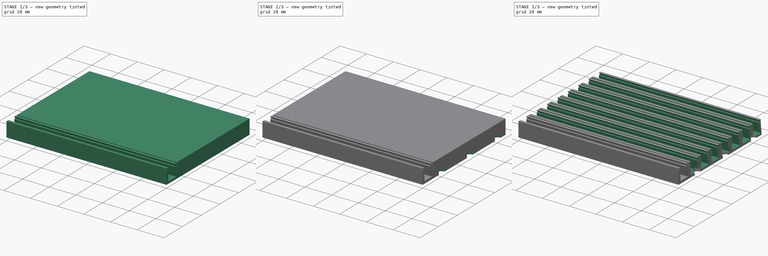
[diagram: build sequence overview — one tinted view per stage of 3, left to right]
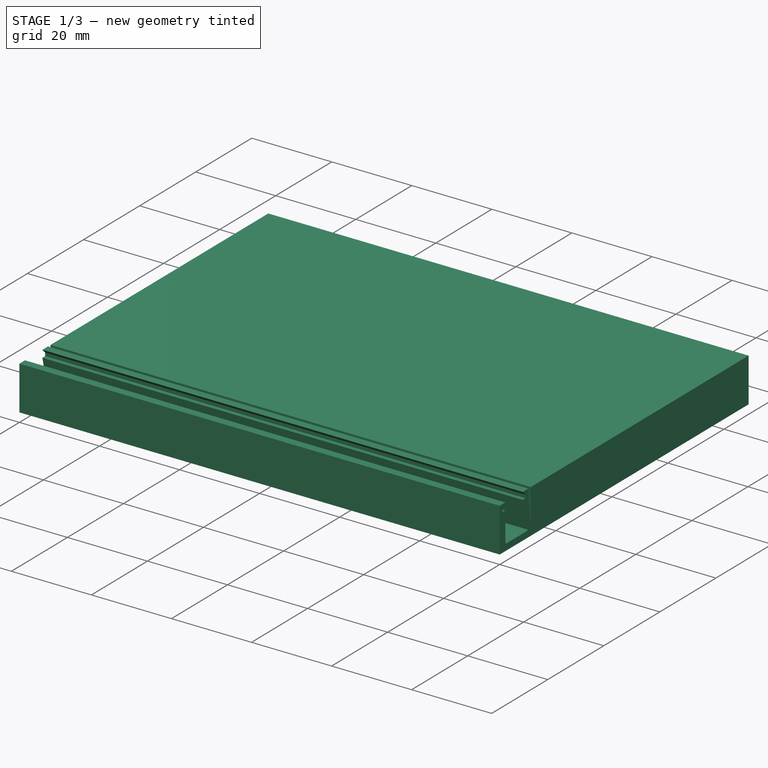
[diagram: stage 1 of 3 — iso view after this stage's code; geometry added in this stage tinted green]
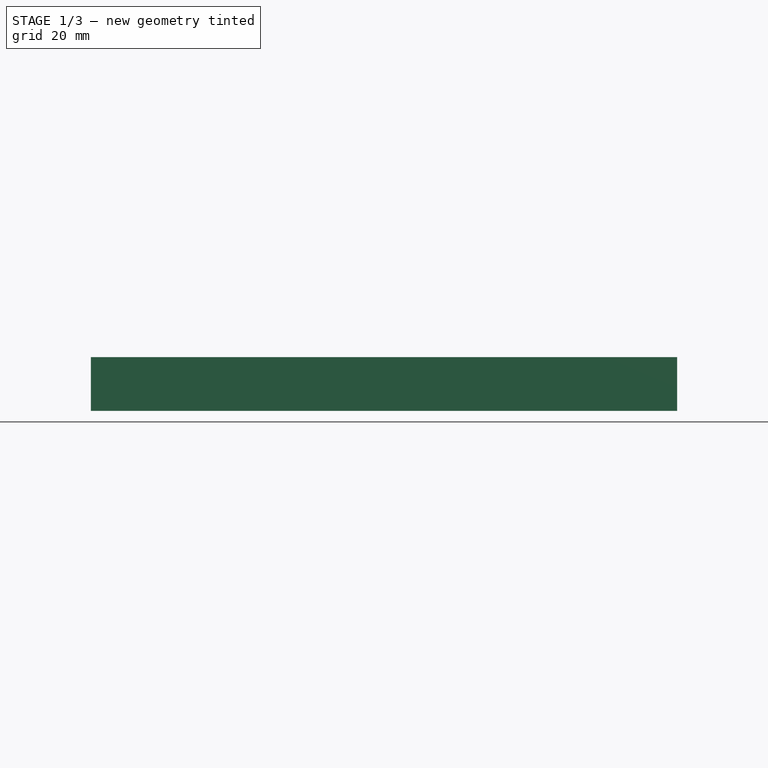
[diagram: stage 1 of 3 — front view after this stage's code; geometry added in this stage tinted green]
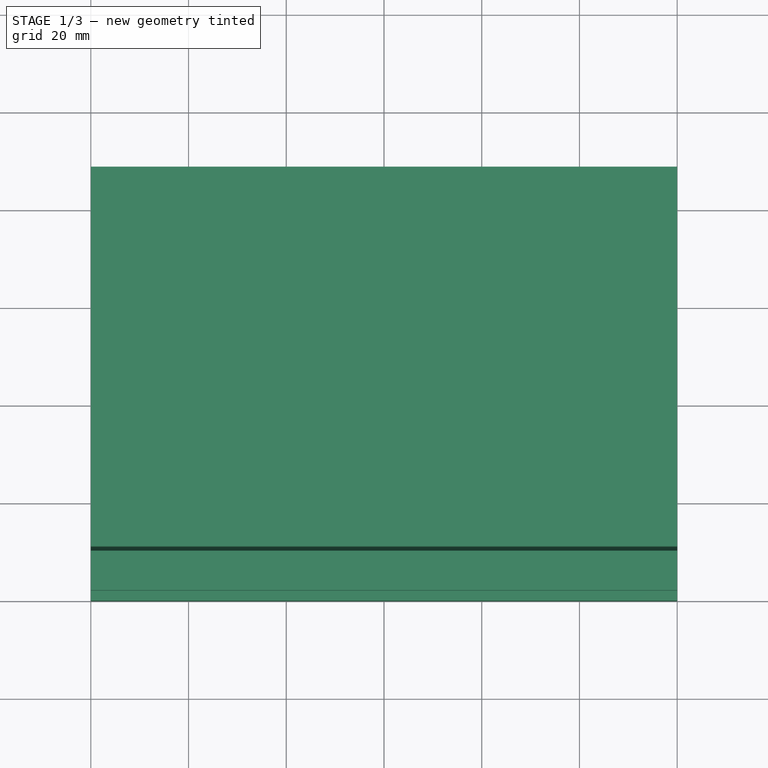
[diagram: stage 1 of 3 — top view after this stage's code; geometry added in this stage tinted green]
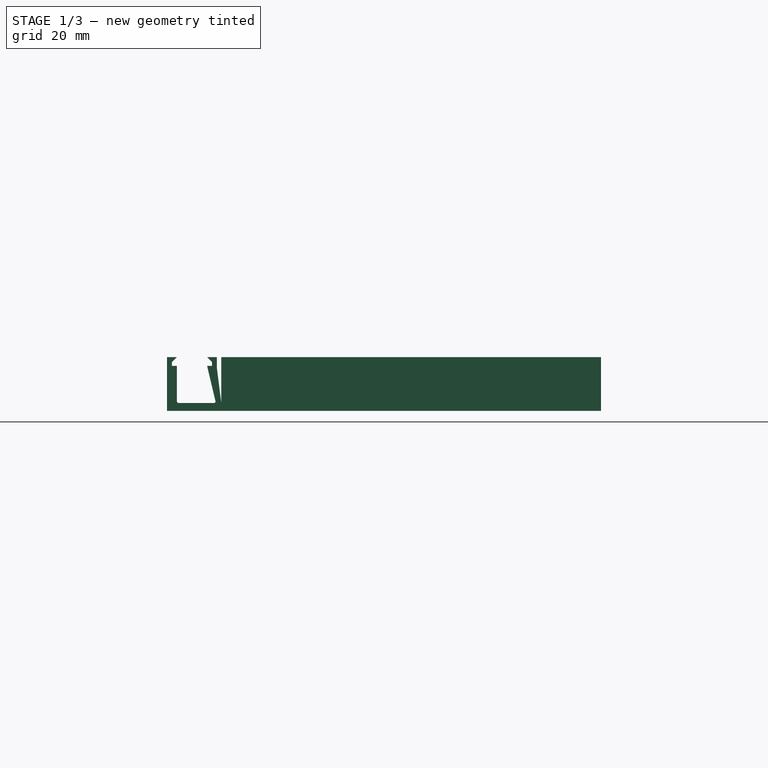
[diagram: stage 1 of 3 — right view after this stage's code; geometry added in this stage tinted green]
FCSTD DOCUMENT  (FreeCAD 0.19R24276 (Git))
Label: 8mm-strip-feeder
License: All rights reserved
LicenseURL: http://en.wikipedia.org/wiki/All_rights_reserved
objects: Sketcher::SketchObject×5, PartDesign::Pocket×2, PartDesign::Hole×2, PartDesign::Pad×1, Spreadsheet::Sheet×1, PartDesign::LinearPattern×1, PartDesign::Plane×1, PartDesign::Body×1
note: 18 computed .brp shape members not serialized (recipe doc carries the construction recipe); baked Part::Feature solids carry a one-line shape summary decoded from their .brp

FEATURE [Sketcher::SketchObject] Sketch  label="Base"
  FullyConstrained = true
  MapMode = 2
  Support = -> [XY_Plane]
  expr: .Constraints.Length = <<StripFeederParams>>.Length
  expr: Constraints[10] = <<StripFeederParams>>.WidthOfAllHolders
  sketch-geometry (4):
    g0: LineSegment StartX=0 StartY=0 StartZ=0 EndX=120 EndY=0 EndZ=0
    g1: LineSegment StartX=120 StartY=0 StartZ=0 EndX=120 EndY=88.8 EndZ=0
    g2: LineSegment StartX=120 StartY=88.8 StartZ=0 EndX=0 EndY=88.8 EndZ=0
    g3: LineSegment StartX=0 StartY=88.8 StartZ=0 EndX=0 EndY=0 EndZ=0
  constraints (11):
    c: Coincident(g0,g1)
    c: Coincident(g1,g2)
    c: Coincident(g2,g3)
    c: Coincident(g3,g0)
    c: Horizontal(g0)
    c: Horizontal(g2)
    c: Vertical(g1)
    c: Vertical(g3)
    c: Coincident(g0,g-1)
    c: DistanceX(g2,g2) = 120  'Length'
    c: DistanceY(g1,g1) = 88.8
FEATURE [PartDesign::Pad] Pad
  Direction = (0,0,1)
  Length = 11
  Length2 = 100
  Profile = -> Sketch
  Type = 0
FEATURE [Sketcher::SketchObject] Sketch001  label="TapeSlots"
  FullyConstrained = true
  MapMode = 5
  Placement = pos=(0,0,0) rot=(0.57735,0.57735,0.57735;2.0944rad)
  Support = -> [YZ_Plane]
  expr: Constraints[49] = <<StripFeederParams>>.TapeWidth + <<StripFeederParams>>.HolderW
  expr: Constraints[47] = <<StripFeederParams>>.BuildHeight
  expr: Constraints[5] = Spreadsheet.TapeThickness
  expr: Constraints[6] = <<StripFeederParams>>.TapeWidth + 0.1
  sketch-geometry (23):
    g0: LineSegment StartX=9.2 StartY=9.2 StartZ=0 EndX=9.2 EndY=10 EndZ=0
    g1: LineSegment StartX=9.2 StartY=10 StartZ=0 EndX=8.2 EndY=11 EndZ=0
    g2: LineSegment StartX=1 StartY=9.2 StartZ=0 EndX=1 EndY=10 EndZ=0
    g3: LineSegment StartX=1 StartY=10 StartZ=0 EndX=2 EndY=11 EndZ=0
    g4: LineSegment StartX=1 StartY=9.2 StartZ=0 EndX=2 EndY=9.2 EndZ=0
    g5: LineSegment StartX=2 StartY=9.2 StartZ=0 EndX=2 EndY=1.9 EndZ=0
    g6: LineSegment StartX=9.2 StartY=9.2 StartZ=0 EndX=8.2 EndY=9.2 EndZ=0
    g7: LineSegment StartX=8.2 StartY=9.2 StartZ=0 EndX=10 EndY=1.6 EndZ=0
    g8: LineSegment StartX=10 StartY=1.6 StartZ=0 EndX=2.3 EndY=1.6 EndZ=0
    g9: LineSegment StartX=11 StartY=1.6 StartZ=0 EndX=9.55526 EndY=7.7 EndZ=0
    g10: LineSegment StartX=9.55526 StartY=7.7 StartZ=0 EndX=10.2 EndY=8.74492 EndZ=0
    g11: LineSegment StartX=10.2 StartY=8.74492 StartZ=0 EndX=10.2 EndY=16 EndZ=0
    g12: LineSegment StartX=10.2 StartY=16 StartZ=0 EndX=11.1 EndY=16 EndZ=0
    g13: LineSegment StartX=11.1 StartY=16 StartZ=0 EndX=11.1 EndY=1.6 EndZ=0
    g14: LineSegment StartX=11 StartY=1.6 StartZ=0 EndX=11.1 EndY=1.6 EndZ=0
    g15: LineSegment StartX=2 StartY=11 StartZ=0 EndX=2 EndY=16 EndZ=0
    g16: LineSegment StartX=8.2 StartY=11 StartZ=0 EndX=8.2 EndY=16 EndZ=0
    g17: LineSegment StartX=2 StartY=16 StartZ=0 EndX=8.2 EndY=16 EndZ=0
    g18: LineSegment StartX=11.1 StartY=1.6 StartZ=0 EndX=10.2 EndY=8.74492 EndZ=0
    g19: LineSegment StartX=2 StartY=1.9 StartZ=0 EndX=2.3 EndY=1.6 EndZ=0
    g20: LineSegment StartX=9.7 StartY=1.6 StartZ=0 EndX=9.94255 EndY=1.84255 EndZ=0
    g21: LineSegment StartX=2.3 StartY=1.6 StartZ=0 EndX=9.7 EndY=1.6 EndZ=0
    g22: LineSegment StartX=9.94255 StartY=1.84255 StartZ=0 EndX=8.2 EndY=9.2 EndZ=0
  constraints (67):
    c: Vertical(g0)
    c: Coincident(g1,g0)
    c: Vertical(g2)
    c: Coincident(g3,g2)
    c: Equal(g2,g0)
    c: DistanceY(g0,g0) = 0.8
    c: DistanceX(g2,g0) = 8.2
    c: Angle(g2,g3) = 2.35619
    c: Coincident(g4,g2)
    c: Horizontal(g4)
    c: Coincident(g5,g4)
    c: Vertical(g5)
    c: Coincident(g6,g0)
    c: Coincident(g7,g6)
    c: Coincident(g8,g7)
    c: Horizontal(g8)
    c: Horizontal(g4,g6)
    c: Horizontal(g6,g0)
    c: DistanceX(g-1,g2) = 1
    c: Angle(g1,g0) = 2.35619
    c: DistanceX(g4,g4) = 1
    c: DistanceX(g0,g7) = 0.8
    c: Coincident(g10,g9)
    c: Coincident(g11,g10)
    c: Vertical(g11)
    c: Coincident(g12,g11)
    c: Horizontal(g12)
    c: Coincident(g13,g12)
    c: Vertical(g13)
    c: Parallel(g7,g9)
    c: DistanceY(g9,g0) = 1.5
    c: Coincident(g14,g9)
    c: Coincident(g14,g13)
    c: Horizontal(g14)
    c: Horizontal(g9,g7)
    c: DistanceX(g7,g9) = 1
    c: DistanceX(g0,g10) = 1
    c: Vertical(g4,g3)
    c: DistanceX(g1,g0) = 1
    c: Coincident(g15,g3)
    c: Vertical(g15)
    c: Coincident(g16,g1)
    c: Vertical(g16)
    c: Coincident(g17,g15)
    c: Coincident(g17,g16)
    c: Horizontal(g17)
    c: DistanceY(g15,g15) = 5
    c: DistanceY(g-1,g2) = 10
    c: Horizontal(g11,g16)
    c: DistanceX(g-1,g13) = 11.1
    c: Vertical(g6,g1)
    c: Angle(g9,g10) = 2.35619
    c: Coincident(g18,g13)
    c: Coincident(g18,g10)
    c: Angle(g8,g19) = 2.35619
    c: Coincident(g5,g19)
    c: Coincident(g8,g19)
    c: DistanceY(g-1,g8) = 1.6
    c: DistanceX(g5,g8) = 0.3
    c: PointOnObject(g20,g8)
    c: PointOnObject(g20,g7)
    c: Perpendicular(g19,g20)
    c: DistanceX(g20,g7) = 0.3
    c: Coincident(g21,g19)
    c: Coincident(g21,g20)
    c: Coincident(g22,g20)
    c: Coincident(g22,g6)
FEATURE [PartDesign::Pocket] Pocket  label="TapeSlotCutouts"
  BaseFeature = -> Pad
  Length = 120
  Length2 = 100
  Profile = -> Sketch001
  Reversed = true
  Type = 0
  expr: Length = <<StripFeederParams>>.Length
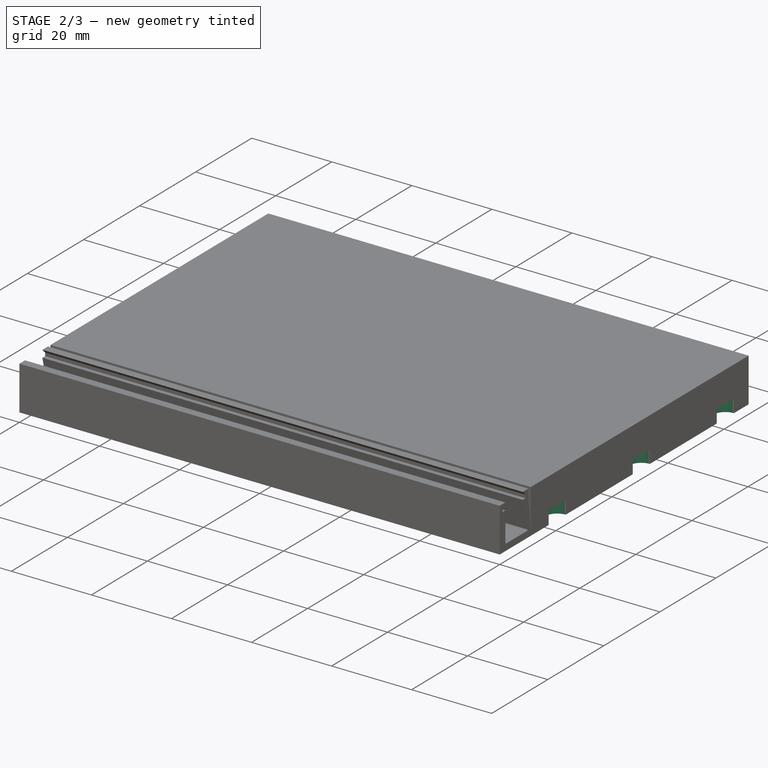
[diagram: stage 2 of 3 — iso view after this stage's code; geometry added in this stage tinted green]
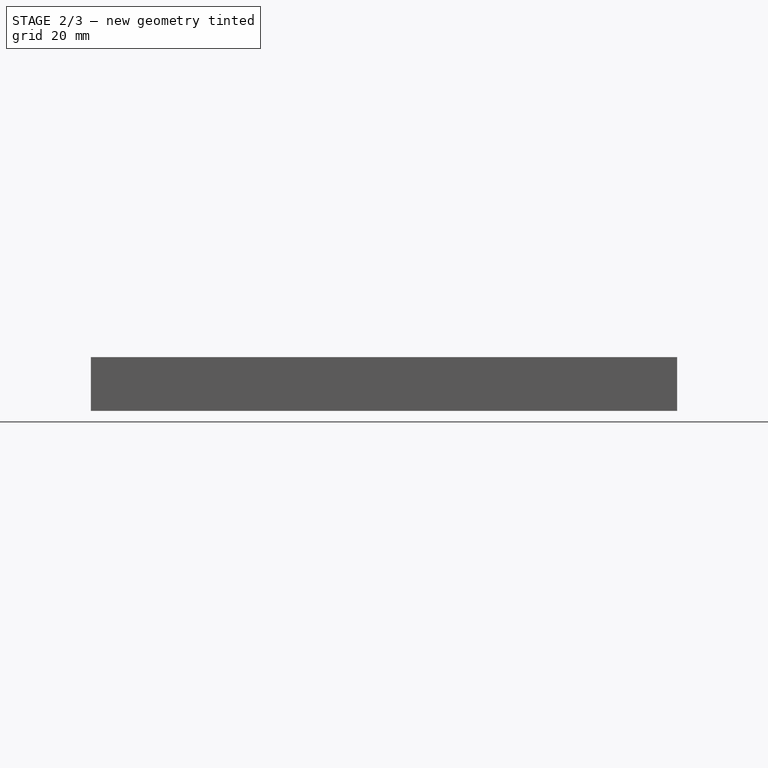
[diagram: stage 2 of 3 — front view after this stage's code; geometry added in this stage tinted green]
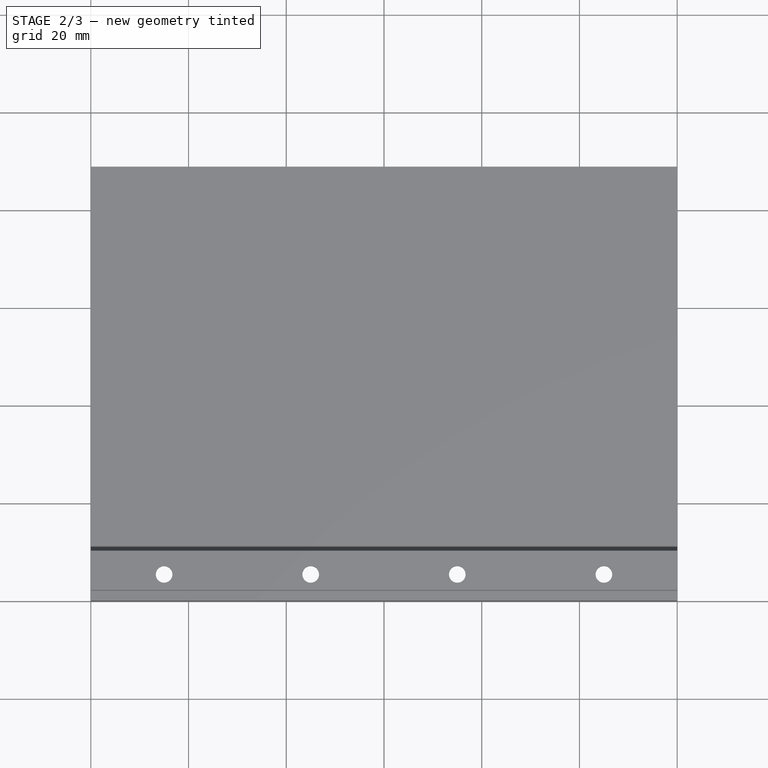
[diagram: stage 2 of 3 — top view after this stage's code; geometry added in this stage tinted green]
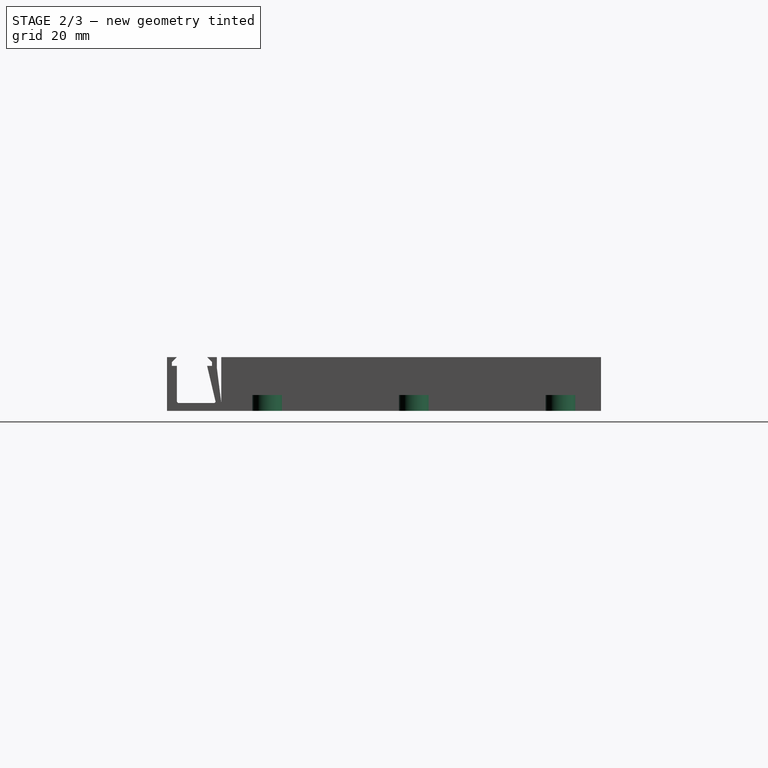
[diagram: stage 2 of 3 — right view after this stage's code; geometry added in this stage tinted green]
FEATURE [Sketcher::SketchObject] Sketch003  label="M3Nuts"
  AttachmentOffset = pos=(0,0,1.6) rot=(0,0,1;0rad)
  FullyConstrained = true
  MapMode = 5
  Placement = pos=(0,0,1.6) rot=(0,0,1;0rad)
  Support = -> [XY_Plane]
  expr: .AttachmentOffset.Base.z = <<StripFeederParams>>.BaseThickness
  expr: Constraints[55] = <<StripFeederParams>>.TabSpacingMultiple > 2 ? <<StripFeederParams>>.GridSpacing : <<StripFeederParams>>.Length
  expr: Constraints[56] = <<StripFeederParams>>.HoleOffsetY
  expr: Constraints[57] = <<StripFeederParams>>.HoleOffsetX
  expr: Constraints[66] = <<StripFeederParams>>.GridSpacing
  sketch-geometry (23):
    g0: LineSegment StartX=16.8333 StartY=2.32457 StartZ=0 EndX=18.6667 EndY=5.5 EndZ=0
    g1: LineSegment StartX=18.6667 StartY=5.5 StartZ=0 EndX=16.8333 EndY=8.67543 EndZ=0
    g2: LineSegment StartX=16.8333 StartY=8.67543 StartZ=0 EndX=13.1667 EndY=8.67543 EndZ=0
    g3: LineSegment StartX=13.1667 StartY=8.67543 StartZ=0 EndX=11.3333 EndY=5.5 EndZ=0
    g4: LineSegment StartX=11.3333 StartY=5.5 StartZ=0 EndX=13.1667 EndY=2.32457 EndZ=0
    g5: LineSegment StartX=13.1667 StartY=2.32457 StartZ=0 EndX=16.8333 EndY=2.32457 EndZ=0
    g6: Circle CenterX=15 CenterY=5.5 CenterZ=0 NormalX=0 NormalY=0 NormalZ=1 AngleXU=0 Radius=3.66667
    g7: LineSegment StartX=46.8333 StartY=2.32457 StartZ=0 EndX=48.6667 EndY=5.5 EndZ=0
    g8: LineSegment StartX=48.6667 StartY=5.5 StartZ=0 EndX=46.8333 EndY=8.67543 EndZ=0
    g9: LineSegment StartX=46.8333 StartY=8.67543 StartZ=0 EndX=43.1667 EndY=8.67543 EndZ=0
    g10: LineSegment StartX=43.1667 StartY=8.67543 StartZ=0 EndX=41.3333 EndY=5.5 EndZ=0
    g11: LineSegment StartX=41.3333 StartY=5.5 StartZ=0 EndX=43.1667 EndY=2.32457 EndZ=0
    g12: LineSegment StartX=43.1667 StartY=2.32457 StartZ=0 EndX=46.8333 EndY=2.32457 EndZ=0
    g13: Circle CenterX=45 CenterY=5.5 CenterZ=0 NormalX=0 NormalY=0 NormalZ=1 AngleXU=0 Radius=3.66667
    g14: LineSegment StartX=76.8333 StartY=2.32457 StartZ=0 EndX=78.6667 EndY=5.5 EndZ=0
    g15: LineSegment StartX=78.6667 StartY=5.5 StartZ=0 EndX=76.8333 EndY=8.67543 EndZ=0
    g16: LineSegment StartX=76.8333 StartY=8.67543 StartZ=0 EndX=73.1667 EndY=8.67543 EndZ=0
    g17: LineSegment StartX=73.1667 StartY=8.67543 StartZ=0 EndX=71.3333 EndY=5.5 EndZ=0
    g18: LineSegment StartX=71.3333 StartY=5.5 StartZ=0 EndX=73.1667 EndY=2.32457 EndZ=0
    g19: LineSegment StartX=73.1667 StartY=2.32457 StartZ=0 EndX=76.8333 EndY=2.32457 EndZ=0
    g20: Circle CenterX=75 CenterY=5.5 CenterZ=0 NormalX=0 NormalY=0 NormalZ=1 AngleXU=0 Radius=3.66667
    g21: LineSegment StartX=75 StartY=5.5 StartZ=0 EndX=45 EndY=5.5 EndZ=0
    g22: LineSegment StartX=45 StartY=5.5 StartZ=0 EndX=15 EndY=5.5 EndZ=0
  constraints (55):
    c: Coincident(g0,g1)
    c: Coincident(g1,g2)
    c: Coincident(g2,g3)
    c: Coincident(g3,g4)
    c: Coincident(g4,g5)
    c: Coincident(g5,g0)
    c: Equal(g0, g1-g5) x5
    c: PointOnObject(g0,g6)
    c: PointOnObject(g1,g6)
    c: PointOnObject(g2,g6)
    c: PointOnObject(g3,g6)
    c: PointOnObject(g4,g6)
    c: PointOnObject(g5,g6)
    c: Coincident(g7,g8)
    c: Coincident(g8,g9)
    c: Coincident(g9,g10)
    c: Coincident(g10,g11)
    c: Coincident(g11,g12)
    c: Coincident(g12,g7)
    c: Equal(g7, g8-g12) x5
    c: PointOnObject(g7,g13)
    c: PointOnObject(g8,g13)
    c: PointOnObject(g9,g13)
    c: PointOnObject(g10,g13)
    c: PointOnObject(g11,g13)
    c: PointOnObject(g12,g13)
    c: Coincident(g14,g15)
    c: Coincident(g15,g16)
    c: Coincident(g16,g17)
    c: Coincident(g17,g18)
    c: Coincident(g18,g19)
    c: Coincident(g19,g14)
    c: Equal(g14, g15-g19) x5
    c: PointOnObject(g14,g20)
    c: PointOnObject(g15,g20)
    c: PointOnObject(g16,g20)
    c: PointOnObject(g17,g20)
    c: PointOnObject(g18,g20)
    c: PointOnObject(g19,g20)
    c: Equal(g6,g13)
    c: Equal(g13,g20)
    c: Horizontal(g6,g13)
    c: Horizontal(g13,g20)
    c: DistanceX(g13,g20) = 30
    c: DistanceX(g-1,g6) = 15
    c: DistanceY(g-1,g6) = 5.5
    c: DistanceX(g2,g0) = 5.5
    c: Horizontal(g16)
    c: Horizontal(g9)
    c: Horizontal(g2)
    c: Coincident(g21,g20)
    c: Coincident(g21,g13)
    c: Coincident(g22,g13)
    c: Coincident(g22,g6)
    c: DistanceX(g6,g13) = 30
FEATURE [Sketcher::SketchObject] Sketch006  label="CounterBoreHoles"
  FullyConstrained = true
  MapMode = 5
  Support = -> [XY_Plane]
  expr: Constraints[20] = <<StripFeederParams>>.GridSpacing
  expr: Constraints[23] = <<StripFeederParams>>.GridSpacing
  expr: Constraints[34] = <<StripFeederParams>>.GridSpacing / 2
  expr: Constraints[198] = <<StripFeederParams>>.GridSpacing
  expr: Constraints[35] = <<StripFeederParams>>.GridSpacing / 2
  expr: Constraints[66] = <<StripFeederParams>>.HoleOffsetX
  expr: Constraints[67] = <<StripFeederParams>>.GridSpacing / 2
  expr: Constraints[72] = <<StripFeederParams>>.HoleOffsetY
  expr: Constraints[73] = <<StripFeederParams>>.GridSpacing / 2
  sketch-geometry (83):
    g0: Circle CenterX=15 CenterY=35.5 CenterZ=0 NormalX=0 NormalY=0 NormalZ=1 AngleXU=0 Radius=3
    g1: Circle CenterX=45 CenterY=35.5 CenterZ=0 NormalX=0 NormalY=0 NormalZ=1 AngleXU=0 Radius=3
    g2: Circle CenterX=75 CenterY=35.5 CenterZ=0 NormalX=0 NormalY=0 NormalZ=1 AngleXU=0 Radius=3
    g3: Circle CenterX=15 CenterY=65.5 CenterZ=0 NormalX=0 NormalY=0 NormalZ=1 AngleXU=0 Radius=3
    g4: Circle CenterX=45 CenterY=65.5 CenterZ=0 NormalX=0 NormalY=0 NormalZ=1 AngleXU=0 Radius=3
    g5: Circle CenterX=75 CenterY=65.5 CenterZ=0 NormalX=0 NormalY=0 NormalZ=1 AngleXU=0 Radius=3
    g6: LineSegment StartX=15 StartY=35.5 StartZ=0 EndX=15 EndY=65.5 EndZ=0
    g7: Circle CenterX=30 CenterY=20.5 CenterZ=0 NormalX=0 NormalY=0 NormalZ=1 AngleXU=0 Radius=3
    g8: Circle CenterX=60 CenterY=20.5 CenterZ=0 NormalX=0 NormalY=0 NormalZ=1 AngleXU=0 Radius=3
    g9: Circle CenterX=60 CenterY=50.5 CenterZ=0 NormalX=0 NormalY=0 NormalZ=1 AngleXU=0 Radius=3
    g10: Circle CenterX=30 CenterY=50.5 CenterZ=0 NormalX=0 NormalY=0 NormalZ=1 AngleXU=0 Radius=3
    g11: LineSegment StartX=30 StartY=20.5 StartZ=0 EndX=30 EndY=50.5 EndZ=0
    g12: Circle CenterX=90 CenterY=50.5 CenterZ=0 NormalX=0 NormalY=0 NormalZ=1 AngleXU=0 Radius=3
    g13: Circle CenterX=105 CenterY=65.5 CenterZ=0 NormalX=0 NormalY=0 NormalZ=1 AngleXU=0 Radius=3
    g14: Circle CenterX=90 CenterY=20.5 CenterZ=0 NormalX=0 NormalY=0 NormalZ=1 AngleXU=0 Radius=3
    g15: Circle CenterX=105 CenterY=35.5 CenterZ=0 NormalX=0 NormalY=0 NormalZ=1 AngleXU=0 Radius=3
    g16: Circle CenterX=30 CenterY=80.5 CenterZ=0 NormalX=0 NormalY=0 NormalZ=1 AngleXU=0 Radius=3
    g17: Circle CenterX=60 CenterY=80.5 CenterZ=0 NormalX=0 NormalY=0 NormalZ=1 AngleXU=0 Radius=3
    g18: Circle CenterX=90 CenterY=80.5 CenterZ=0 NormalX=0 NormalY=0 NormalZ=1 AngleXU=0 Radius=3
    g19: LineSegment StartX=30 StartY=80.5 StartZ=0 EndX=30 EndY=50.5 EndZ=0
    g20: LineSegment StartX=15 StartY=35.5 StartZ=0 EndX=45 EndY=35.5 EndZ=0
    g21: LineSegment StartX=105 StartY=35.5 StartZ=0 EndX=75 EndY=35.5 EndZ=0
    g22: LineSegment StartX=45 StartY=35.5 StartZ=0 EndX=75 EndY=35.5 EndZ=0
    g23: LineSegment StartX=30 StartY=20.5 StartZ=0 EndX=60 EndY=20.5 EndZ=0
    g24: LineSegment StartX=90 StartY=20.5 StartZ=0 EndX=60 EndY=20.5 EndZ=0
    g25: LineSegment StartX=0 StartY=5.5 StartZ=0 EndX=105 EndY=5.5 EndZ=0
    g26: LineSegment StartX=15 StartY=0 StartZ=0 EndX=15 EndY=80.5 EndZ=0
    g27: Circle CenterX=15 CenterY=95.5 CenterZ=0 NormalX=0 NormalY=0 NormalZ=1 AngleXU=0 Radius=3
    g28: Circle CenterX=45 CenterY=95.5 CenterZ=0 NormalX=0 NormalY=0 NormalZ=1 AngleXU=0 Radius=3
    g29: Circle CenterX=75 CenterY=95.5 CenterZ=0 NormalX=0 NormalY=0 NormalZ=1 AngleXU=0 Radius=3
    g30: Circle CenterX=105 CenterY=95.5 CenterZ=0 NormalX=0 NormalY=0 NormalZ=1 AngleXU=0 Radius=3
    g31: Circle CenterX=30 CenterY=110.5 CenterZ=0 NormalX=0 NormalY=0 NormalZ=1 AngleXU=0 Radius=3
    g32: Circle CenterX=60 CenterY=110.5 CenterZ=0 NormalX=0 NormalY=0 NormalZ=1 AngleXU=0 Radius=3
    g33: Circle CenterX=90 CenterY=110.5 CenterZ=0 NormalX=0 NormalY=0 NormalZ=1 AngleXU=0 Radius=3
    g34: Circle CenterX=15 CenterY=125.5 CenterZ=0 NormalX=0 NormalY=0 NormalZ=1 AngleXU=0 Radius=3
    g35: Circle CenterX=45 CenterY=125.5 CenterZ=0 NormalX=0 NormalY=0 NormalZ=1 AngleXU=0 Radius=3
    g36: Circle CenterX=75 CenterY=125.5 CenterZ=0 NormalX=0 NormalY=0 NormalZ=1 AngleXU=0 Radius=3
    g37: Circle CenterX=105 CenterY=125.5 CenterZ=0 NormalX=0 NormalY=0 NormalZ=1 AngleXU=0 Radius=3
    g38: LineSegment StartX=15 StartY=65.5 StartZ=0 EndX=15 EndY=95.5 EndZ=0
    g39: LineSegment StartX=15 StartY=95.5 StartZ=0 EndX=15 EndY=125.5 EndZ=0
    g40: LineSegment StartX=30 StartY=80.5 StartZ=0 EndX=30 EndY=110.5 EndZ=0
    g41: Circle CenterX=15 CenterY=155.5 CenterZ=0 NormalX=0 NormalY=0 NormalZ=1 AngleXU=0 Radius=3
    g42: Circle CenterX=45 CenterY=155.5 CenterZ=0 NormalX=0 NormalY=0 NormalZ=1 AngleXU=0 Radius=3
    g43: Circle CenterX=75 CenterY=155.5 CenterZ=0 NormalX=0 NormalY=0 NormalZ=1 AngleXU=0 Radius=3
    g44: LineSegment StartX=15 StartY=125.5 StartZ=0 EndX=15 EndY=155.5 EndZ=0
    g45: Circle CenterX=60 CenterY=140.5 CenterZ=0 NormalX=0 NormalY=0 NormalZ=1 AngleXU=0 Radius=3
    g46: Circle CenterX=30 CenterY=140.5 CenterZ=0 NormalX=0 NormalY=0 NormalZ=1 AngleXU=0 Radius=3
    g47: LineSegment StartX=30 StartY=110.5 StartZ=0 EndX=30 EndY=140.5 EndZ=0
    g48: Circle CenterX=90 CenterY=140.5 CenterZ=0 NormalX=0 NormalY=0 NormalZ=1 AngleXU=0 Radius=3
    g49: Circle CenterX=105 CenterY=155.5 CenterZ=0 NormalX=0 NormalY=0 NormalZ=1 AngleXU=0 Radius=3
    g50: Circle CenterX=30 CenterY=170.5 CenterZ=0 NormalX=0 NormalY=0 NormalZ=1 AngleXU=0 Radius=3
    g51: Circle CenterX=60 CenterY=170.5 CenterZ=0 NormalX=0 NormalY=0 NormalZ=1 AngleXU=0 Radius=3
    g52: Circle CenterX=90 CenterY=170.5 CenterZ=0 NormalX=0 NormalY=0 NormalZ=1 AngleXU=0 Radius=3
    g53: LineSegment StartX=30 StartY=170.5 StartZ=0 EndX=30 EndY=140.5 EndZ=0
    g54: Circle CenterX=15 CenterY=185.5 CenterZ=0 NormalX=0 NormalY=0 NormalZ=1 AngleXU=0 Radius=3
    g55: Circle CenterX=45 CenterY=185.5 CenterZ=0 NormalX=0 NormalY=0 NormalZ=1 AngleXU=0 Radius=3
    g56: Circle CenterX=75 CenterY=185.5 CenterZ=0 NormalX=0 NormalY=0 NormalZ=1 AngleXU=0 Radius=3
    g57: Circle CenterX=105 CenterY=185.5 CenterZ=0 NormalX=0 NormalY=0 NormalZ=1 AngleXU=0 Radius=3
    g58: Circle CenterX=30 CenterY=200.5 CenterZ=0 NormalX=0 NormalY=0 NormalZ=1 AngleXU=0 Radius=3
    g59: Circle CenterX=60 CenterY=200.5 CenterZ=0 NormalX=0 NormalY=0 NormalZ=1 AngleXU=0 Radius=3
    g60: Circle CenterX=90 CenterY=200.5 CenterZ=0 NormalX=0 NormalY=0 NormalZ=1 AngleXU=0 Radius=3
    g61: Circle CenterX=15 CenterY=215.5 CenterZ=0 NormalX=0 NormalY=0 NormalZ=1 AngleXU=0 Radius=3
    g62: Circle CenterX=45 CenterY=215.5 CenterZ=0 NormalX=0 NormalY=0 NormalZ=1 AngleXU=0 Radius=3
    g63: Circle CenterX=75 CenterY=215.5 CenterZ=0 NormalX=0 NormalY=0 NormalZ=1 AngleXU=0 Radius=3
    g64: Circle CenterX=105 CenterY=215.5 CenterZ=0 NormalX=0 NormalY=0 NormalZ=1 AngleXU=0 Radius=3
    g65: LineSegment StartX=15 StartY=155.5 StartZ=0 EndX=15 EndY=185.5 EndZ=0
    g66: LineSegment StartX=15 StartY=185.5 StartZ=0 EndX=15 EndY=215.5 EndZ=0
    g67: LineSegment StartX=30 StartY=170.5 StartZ=0 EndX=30 EndY=200.5 EndZ=0
    g68: Circle CenterX=120 CenterY=50.5 CenterZ=0 NormalX=0 NormalY=0 NormalZ=1 AngleXU=0 Radius=3
    g69: Circle CenterX=120 CenterY=20.5 CenterZ=0 NormalX=0 NormalY=0 NormalZ=1 AngleXU=0 Radius=3
    g70: Circle CenterX=120 CenterY=80.5 CenterZ=0 NormalX=0 NormalY=0 NormalZ=1 AngleXU=0 Radius=3
    g71: LineSegment StartX=120 StartY=20.5 StartZ=0 EndX=90 EndY=20.5 EndZ=0
    g72: Circle CenterX=120 CenterY=110.5 CenterZ=0 NormalX=0 NormalY=0 NormalZ=1 AngleXU=0 Radius=3
    g73: Circle CenterX=120 CenterY=140.5 CenterZ=0 NormalX=0 NormalY=0 NormalZ=1 AngleXU=0 Radius=3
    g74: Circle CenterX=120 CenterY=170.5 CenterZ=0 NormalX=0 NormalY=0 NormalZ=1 AngleXU=0 Radius=3
    g75: Circle CenterX=120 CenterY=200.5 CenterZ=0 NormalX=0 NormalY=0 NormalZ=1 AngleXU=0 Radius=3
    g76: Circle CenterX=0 CenterY=50.5 CenterZ=0 NormalX=0 NormalY=0 NormalZ=1 AngleXU=0 Radius=3
    g77: Circle CenterX=0 CenterY=20.5 CenterZ=0 NormalX=0 NormalY=0 NormalZ=1 AngleXU=0 Radius=3
    g78: Circle CenterX=0 CenterY=80.5 CenterZ=0 NormalX=0 NormalY=0 NormalZ=1 AngleXU=0 Radius=3
    g79: Circle CenterX=0 CenterY=110.5 CenterZ=0 NormalX=0 NormalY=0 NormalZ=1 AngleXU=0 Radius=3
    g80: Circle CenterX=0 CenterY=140.5 CenterZ=0 NormalX=0 NormalY=0 NormalZ=1 AngleXU=0 Radius=3
    g81: Circle CenterX=0 CenterY=170.5 CenterZ=0 NormalX=0 NormalY=0 NormalZ=1 AngleXU=0 Radius=3
    g82: Circle CenterX=0 CenterY=200.5 CenterZ=0 NormalX=0 NormalY=0 NormalZ=1 AngleXU=0 Radius=3
  constraints (233):
    c: Equal(g0,g1)
    c: Horizontal(g0,g1)
    c: Horizontal(g1,g2)
    c: Horizontal(g3,g4)
    c: Horizontal(g4,g5)
    c: Vertical(g0,g3)
    c: Vertical(g1,g4)
    c: Vertical(g2,g5)
    c: Equal(g2,g5)
    c: Coincident(g6,g0)
    c: Coincident(g6,g3)
    c: Vertical(g7,g10)
    c: Vertical(g8,g9)
    c: Equal(g8,g9)
    c: Equal(g8,g7)
    c: Equal(g7,g10)
    c: Horizontal(g7,g8)
    c: Horizontal(g10,g9)
    c: Coincident(g11,g7)
    c: Coincident(g11,g10)
    c: DistanceY(g11,g11) = 30
    c: Equal(g7,g1)
    c: Equal(g1,g2)
    c: DistanceX(g0,g1) = 30
    c: Horizontal(g14,g8)
    c: Horizontal(g2,g15)
    c: Horizontal(g9,g12)
    c: Horizontal(g5,g13)
    c: Vertical(g14,g12)
    c: Vertical(g15,g13)
    c: Equal(g14,g15)
    c: Equal(g15,g12)
    c: Equal(g12,g13)
    c: Equal(g13,g5)
    c: DistanceX(g0,g10) = 15
    c: DistanceY(g7,g1) = 15
    c: Equal(g4,g3)
    c: Equal(g3,g5)
    c: Equal(g6,g11)
    c: Horizontal(g16,g17)
    c: Horizontal(g17,g18)
    c: Coincident(g19,g16)
    c: Coincident(g19,g10)
    c: Equal(g19,g6)
    c: Vertical(g10,g16)
    c: Equal(g16,g17)
    c: Equal(g17,g18)
    c: Equal(g18,g5)
    c: Vertical(g17,g9)
    c: Vertical(g12,g18)
    c: Coincident(g20,g0)
    c: Coincident(g20,g1)
    c: Coincident(g21,g15)
    c: Coincident(g21,g2)
    c: Coincident(g22,g1)
    c: Coincident(g22,g2)
    c: Coincident(g23,g7)
    c: Coincident(g23,g8)
    c: Coincident(g24,g14)
    c: Coincident(g24,g8)
    c: Equal(g20,g22)
    c: Equal(g22,g21)
    c: Equal(g20,g23)
    c: Equal(g23,g24)
    c: PointOnObject(g25,g-2)
    c: Horizontal(g25)
    c: DistanceY(g-1,g25) = 5.5
    c: DistanceY(g25,g7) = 15
    c: Vertical(g25,g15)
    c: PointOnObject(g26,g-1)
    c: Vertical(g26)
    c: Horizontal(g16,g26)
    c: DistanceX(g-1,g26) = 15
    c: DistanceX(g26,g7) = 15
    c: Horizontal(g27,g28)
    c: Horizontal(g28,g29)
    c: Horizontal(g29,g30)
    c: Horizontal(g31,g32)
    c: Horizontal(g32,g33)
    c: Horizontal(g34,g35)
    c: Horizontal(g35,g36)
    c: Horizontal(g36,g37)
    c: Coincident(g38,g3)
    c: Coincident(g38,g27)
    c: Vertical(g38)
    c: Coincident(g39,g27)
    c: Coincident(g39,g34)
    c: Coincident(g40,g16)
    c: Coincident(g40,g31)
    c: Vertical(g31,g16)
    c: Vertical(g3,g34)
    c: Vertical(g4,g28)
    c: Vertical(g28,g35)
    c: Vertical(g17,g32)
    c: Equal(g38,g39)
    c: Equal(g39,g40)
    c: Equal(g40,g19)
    c: Vertical(g5,g29)
    c: Vertical(g29,g36)
    c: Vertical(g18,g33)
    c: Vertical(g13,g30)
    c: Vertical(g30,g37)
    c: Equal(g30,g29)
    c: Equal(g29,g28)
    c: Equal(g28,g31)
    c: Equal(g31,g27)
    c: Equal(g27,g34)
    c: Equal(g34,g35)
    c: Equal(g35,g32)
    c: Equal(g32,g36)
    c: Equal(g36,g33)
    c: Horizontal(g41,g42)
    c: Horizontal(g42,g43)
    c: Coincident(g44,g41)
    c: Horizontal(g46,g45)
    c: Coincident(g47,g46)
    c: Equal(g11,g47) = 30
    c: Horizontal(g45,g48)
    c: Horizontal(g43,g49)
    c: Equal(g48,g49)
    c: Equal(g49,g43)
    c: Equal(g13,g49) = 5
    c: Equal(g42,g41)
    c: Equal(g41,g43)
    c: Equal(g44,g47)
    c: Horizontal(g50,g51)
    c: Horizontal(g51,g52)
    c: Coincident(g53,g50)
    c: Coincident(g53,g46)
    c: Equal(g53,g44)
    c: Vertical(g46,g50)
    c: Equal(g50,g51)
    c: Equal(g51,g52)
    c: Equal(g52,g43)
    c: Vertical(g51,g45)
    c: Vertical(g48,g52)
    c: Horizontal(g54,g55)
    c: Horizontal(g55,g56)
    c: Horizontal(g56,g57)
    c: Horizontal(g58,g59)
    c: Horizontal(g59,g60)
    c: Horizontal(g61,g62)
    c: Horizontal(g62,g63)
    c: Horizontal(g63,g64)
    c: Coincident(g65,g41)
    c: Coincident(g65,g54)
    c: Vertical(g65)
    c: Coincident(g66,g54)
    c: Coincident(g66,g61)
    c: Coincident(g67,g50)
    c: Coincident(g67,g58)
    c: Vertical(g58,g50)
    c: Vertical(g41,g61)
    c: Vertical(g42,g55)
    c: Vertical(g55,g62)
    c: Vertical(g51,g59)
    c: Equal(g65,g66)
    c: Equal(g66,g67)
    c: Equal(g67,g53)
    c: Vertical(g43,g56)
    c: Vertical(g56,g63)
    c: Vertical(g52,g60)
    c: Vertical(g49,g57)
    c: Vertical(g57,g64)
    c: Equal(g57,g56)
    c: Equal(g56,g55)
    c: Equal(g55,g58)
    c: Equal(g58,g54)
    c: Equal(g54,g61)
    c: Equal(g61,g62)
    c: Equal(g62,g59)
    c: Equal(g59,g63)
    c: Equal(g63,g60)
    c: Diameter(g57) = 6
    c: Diameter(g64) = 6
    c: Diameter(g51) = 6
    c: Diameter(g45) = 6
    c: Diameter(g46) = 6
    c: Diameter(g31) = 6
    c: Diameter(g37) = 6
    c: Vertical(g47)
    c: Vertical(g44)
    c: Coincident(g47,g31)
    c: Coincident(g44,g34)
    c: Vertical(g42,g35)
    c: Vertical(g45,g32)
    c: Vertical(g43,g36)
    c: Vertical(g48,g33)
    c: Vertical(g49,g37)
    c: Vertical(g69,g68)
    c: Vertical(g68,g70)
    c: Coincident(g71,g69)
    c: Vertical(g70,g72)
    c: Vertical(g73,g74)
    c: Vertical(g74,g75)
    c: Vertical(g73,g72)
    c: Horizontal(g71)
    c: Coincident(g71,g14)
    c: DistanceX(g14,g69) = 30
    c: Horizontal(g68,g12)
    c: Horizontal(g70,g18)
    c: Horizontal(g72,g33)
    c: Horizontal(g73,g48)
    c: Horizontal(g74,g52)
    c: Horizontal(g60,g75)
    c: Equal(g75,g74)
    c: Equal(g74,g73)
    c: Equal(g73,g72)
    c: Equal(g72,g70)
    c: Equal(g70,g68)
    c: Equal(g68,g69)
    c: Equal(g69,g0)
    c: Vertical(g77,g76)
    c: Vertical(g76,g78)
    c: Vertical(g78,g79)
    c: Vertical(g80,g81)
    c: Vertical(g81,g82)
    c: Vertical(g80,g79)
    c: Equal(g82,g81)
    c: Equal(g81,g80)
    c: Equal(g80,g79)
    c: Equal(g79,g78)
    c: Equal(g78,g76)
    c: Equal(g76,g77)
    c: PointOnObject(g82,g-2)
    c: Horizontal(g77,g7)
    c: Equal(g82,g0)
    c: Horizontal(g76,g10)
    c: Horizontal(g78,g16)
    c: Horizontal(g79,g31)
    c: Horizontal(g80,g46)
    c: Horizontal(g81,g50)
    c: Horizontal(g82,g58)
FEATURE [PartDesign::Hole] Hole001  label="BasePlateHoles"
  BaseFeature = -> Pocket
  Depth = 3.25
  DepthType = 0
  Diameter = 6.1
  DrillForDepth = false
  DrillPoint = 0
  DrillPointAngle = 118
  HoleCutCountersinkAngle = 90
  HoleCutCustomValues = false
  HoleCutDepth = 0
  HoleCutDiameter = 9.76
  HoleCutType = 0
  ModelActualThread = false
  Profile = -> Sketch006
  Reversed = true
  Tapered = false
  TaperedAngle = 90
  ThreadAngle = 0
  ThreadClass = 0
  ThreadCutOffInner = 0
  ThreadCutOffOuter = 0
  ThreadDirection = 0
  ThreadFit = 0
  ThreadPitch = 0
  ThreadSize = 0
  ThreadType = 0
  Threaded = false
FEATURE [Spreadsheet::Sheet] Spreadsheet  label="StripFeederParams"
  cells = A2=Item; B2=Value; C2=Description; A3=Length; B3(Length)=120; C3=Maximum tape length (determines length of feeder); A4=GridSpacing; B4(GridSpacing)=30; C4=Grid spacing of the index build plate (30mm); A5=HoleOffsetX; B5(HoleOffsetX)=5.5; C5=Offset of the grid from 0,0; A6=HoleOffsetY; B6(HoleOffsetY)=15; C6=Offset of the grid from 0,0; A9=TabHeight; B9(TabHeight)=0.8; C9=Height of printed tabs for mounting; A10=Clearance; B10(Clearance)=0.5; C10=Clearance around tabs; A11=ThinBase; B11=1; C11=1 if no screws will be mounted under the feeder, 0 otherwise; D11=ONLY CHANGE THIS!; A12=BaseThickness; B12(BaseThickness)==B11 == 1 ? 1.6 : (B14 == 12 ? 1.6 : 3.4); C12=Thickness of the printed base, multiple of layer height preferable; A13=LayerHeight; B13(LayerHeight)=0.2; C13=FDM printed layer height; A14=TapeWidth; B14(TapeWidth)=8.1; C14=Width of SMD tape (8mm etc.); D14=ONLY CHANGE THIS!; A15=TapeThickness; B15(TapeThickness)=0.8; C15=Thickness of SMD tape (0.8 mm for paper and 0.4 mm for plastic); D15=ONLY CHANGE THIS!; A16=BuildHeight; B16(BuildHeight)=10; C16=Height of the top of the tape when on the build plate (offset from build plate); A17=HolderW; B17(HolderW)=3; C17=Total width of a single holder is TapeWidth + this value; A18=NumberOfHolders; B18(NumberOfHolders)=8; C18=Number of holders to generate; D18=ONLY CHANGE THIS!; A19=SingleHolderWidth; B19(SingleHolderWidth)==B14 + B17; C19=(computed) Width of a single holder; A20=WidthOfAllHolders; B20(WidthOfAllHolders)==B18 * B19; C20=(computed) Width of all the holders; B22==floor(B20 / B4) + (B20 % B4 > 1 ? 1 : 0); C22=(computed) Number of GridSpacing units between mounting holes (width); A23=Total Part Width; B23==B22 * B4; C23=(computed); A24=TabSpacingMultiple; B24(TabSpacingMultiple)==floor((B3 - B6) / B4); C24=(computed) Number of GridSpacing units between mounting holes (based on length); A25=TabUnderMinimum; B25==B22 * B4 + B5 - B20 < B5 ? 1 : 0; C25=Value = 1 if the tab is less than HoleOffsetX; A26=GridMultiple; B26(GridMultiple)==B22 + B25
FEATURE [Sketcher::SketchObject] Sketch002  label="MountingHoles"
  FullyConstrained = false
  MapMode = 5
  Support = -> [XY_Plane]
  expr: Constraints[10] = <<StripFeederParams>>.GridSpacing
  expr: Constraints[5] = <<StripFeederParams>>.HoleOffsetX
  expr: Constraints[12] = <<StripFeederParams>>.HoleOffsetY
  expr: Constraints[14] = <<StripFeederParams>>.GridSpacing * <<StripFeederParams>>.GridMultiple
  expr: Constraints[19] = <<StripFeederParams>>.GridSpacing * <<StripFeederParams>>.TabSpacingMultiple
  expr: Constraints[20] = <<StripFeederParams>>.GridSpacing * <<StripFeederParams>>.TabSpacingMultiple
  sketch-geometry (8):
    g0: Circle CenterX=15 CenterY=5.5 CenterZ=0 NormalX=0 NormalY=0 NormalZ=1 AngleXU=0 Radius=1.5
    g1: Circle CenterX=45 CenterY=5.5 CenterZ=0 NormalX=0 NormalY=0 NormalZ=1 AngleXU=0 Radius=1.5
    g2: Circle CenterX=75 CenterY=5.5 CenterZ=0 NormalX=0 NormalY=0 NormalZ=1 AngleXU=0 Radius=1.5
    g3: LineSegment StartX=15 StartY=5.5 StartZ=0 EndX=45 EndY=5.5 EndZ=0
    g4: LineSegment StartX=45 StartY=5.5 StartZ=0 EndX=75 EndY=5.5 EndZ=0
    g5: Circle CenterX=15 CenterY=95.5 CenterZ=0 NormalX=0 NormalY=0 NormalZ=1 AngleXU=0 Radius=1.5
    g6: Circle CenterX=105 CenterY=5.5 CenterZ=0 NormalX=0 NormalY=0 NormalZ=1 AngleXU=0 Radius=1.5
    g7: Circle CenterX=105 CenterY=95.5 CenterZ=0 NormalX=0 NormalY=0 NormalZ=1 AngleXU=0 Radius=1.5
  constraints (21):
    c: Horizontal(g0,g1)
    c: Horizontal(g1,g2)
    c: Equal(g0,g1)
    c: Equal(g1,g2)
    c: Diameter(g2) = 3
    c: DistanceY(g-1,g0) = 5.5
    c: Coincident(g3,g0)
    c: Coincident(g3,g1)
    c: Coincident(g4,g1)
    c: Coincident(g4,g2)
    c: DistanceX(g4,g4) = 30
    c: Equal(g3,g4)
    c: DistanceX(g-1,g0) = 15
    c: Vertical(g0,g5)
    c: DistanceY(g0,g5) = 90
    c: Horizontal(g5,g7)
    c: Equal(g5,g7)
    c: Equal(g7,g6)
    c: Equal(g6,g2)
    c: DistanceX(g5,g7) = 90
    c: DistanceX(g0,g6) = 90
FEATURE [PartDesign::Hole] Hole
  BaseFeature = -> Hole001
  Depth = 1.6
  DepthType = 0
  Diameter = 3.4
  DrillForDepth = false
  DrillPoint = 0
  DrillPointAngle = 118
  HoleCutCountersinkAngle = 90
  HoleCutCustomValues = false
  HoleCutDepth = 0
  HoleCutDiameter = 6.1
  HoleCutType = 0
  ModelActualThread = false
  Profile = -> Sketch002
  Reversed = true
  Tapered = false
  TaperedAngle = 90
  ThreadAngle = 0
  ThreadClass = 0
  ThreadCutOffInner = 0
  ThreadCutOffOuter = 0
  ThreadDirection = 0
  ThreadFit = 0
  ThreadPitch = 0
  ThreadSize = 9
  ThreadType = 1
  Threaded = false
  expr: Depth = <<StripFeederParams>>.BaseThickness
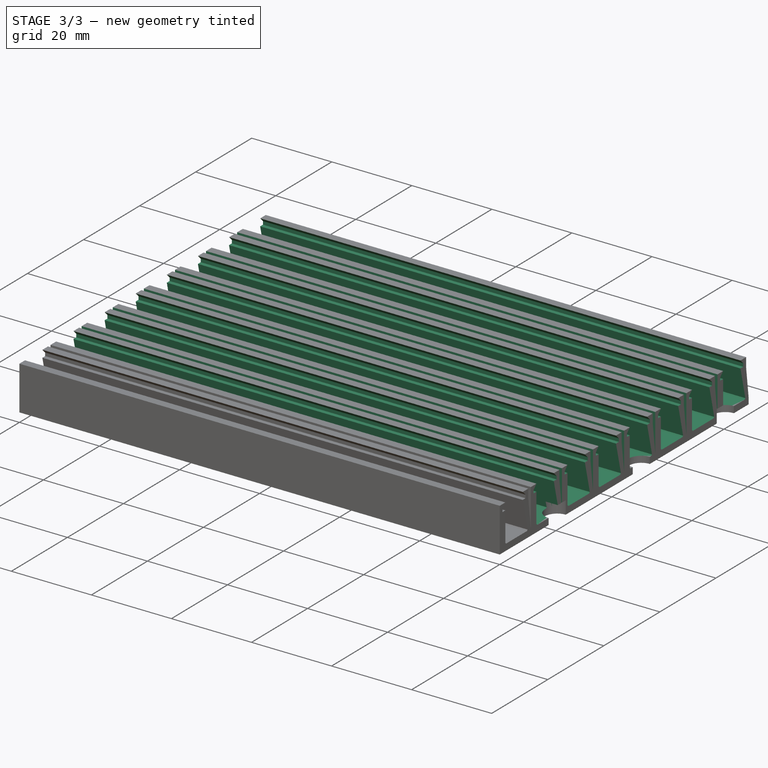
[diagram: stage 3 of 3 — iso view after this stage's code; geometry added in this stage tinted green]
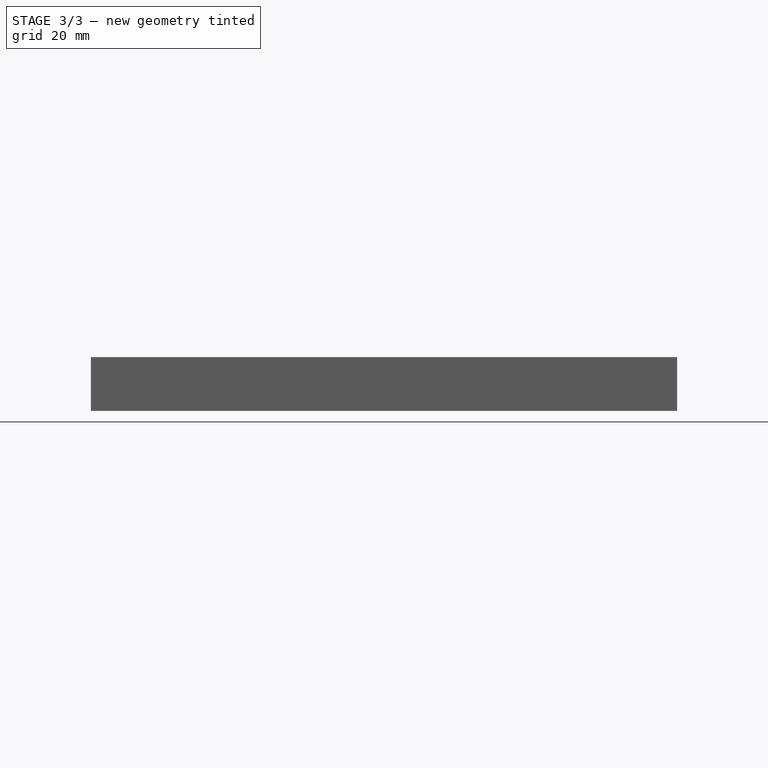
[diagram: stage 3 of 3 — front view after this stage's code; geometry added in this stage tinted green]
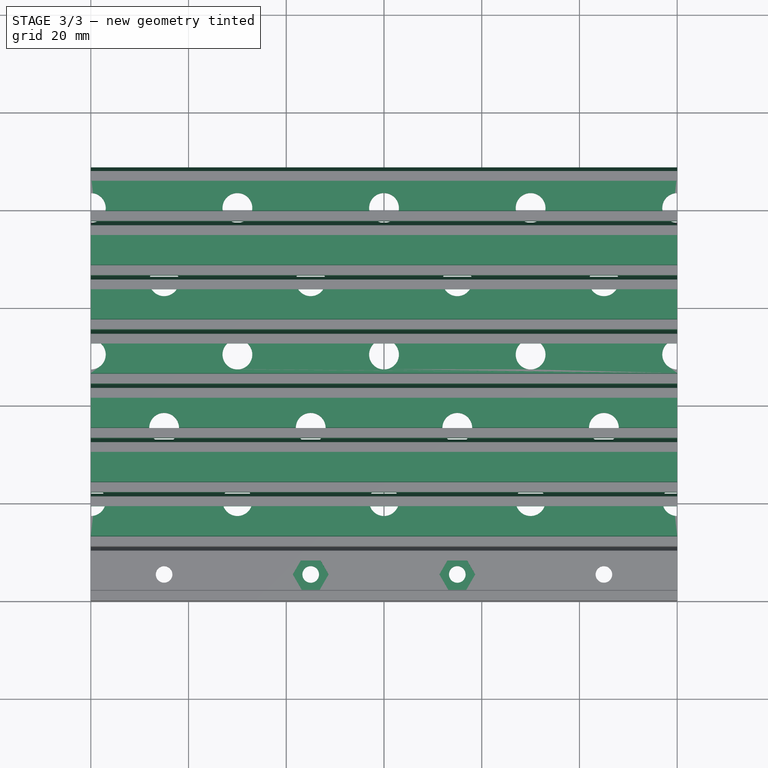
[diagram: stage 3 of 3 — top view after this stage's code; geometry added in this stage tinted green]
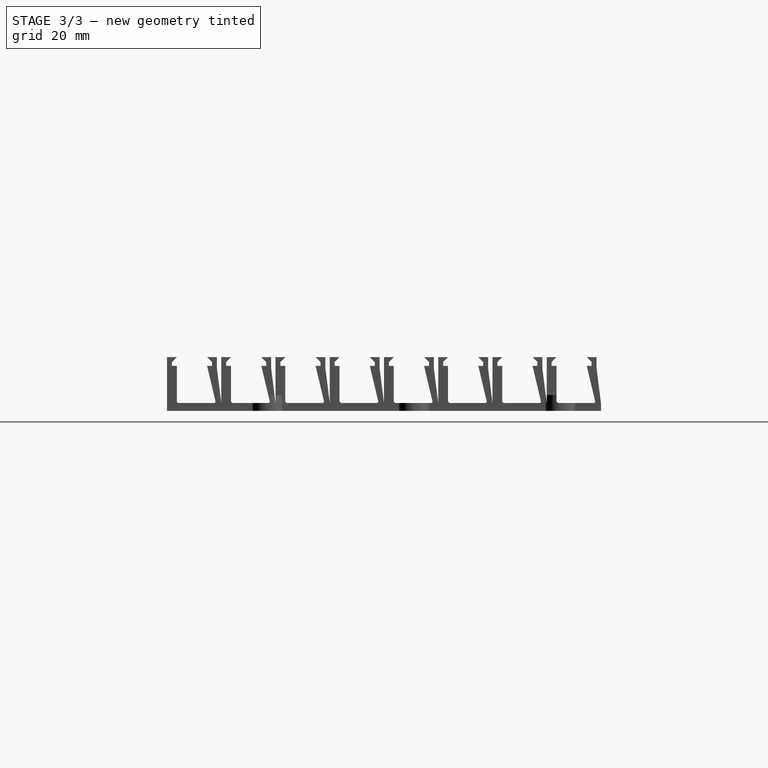
[diagram: stage 3 of 3 — right view after this stage's code; geometry added in this stage tinted green]
FEATURE [PartDesign::Pocket] Pocket001
  BaseFeature = -> Hole
  Length = 0.8
  Length2 = 100
  Profile = -> Sketch003
  Type = 0
  expr: Length = <<StripFeederParams>>.BaseThickness / 2
FEATURE [PartDesign::LinearPattern] LinearPattern
  BaseFeature = -> Pocket001
  Direction = -> Y_Axis
  Length = 77.7
  Occurrences = 8
  Originals = -> [Pocket]
  expr: Length = <<StripFeederParams>>.WidthOfAllHolders - <<StripFeederParams>>.SingleHolderWidth
  expr: Occurrences = <<StripFeederParams>>.NumberOfHolders
FEATURE [PartDesign::Plane] DatumPlane004  label="PrintPlane"
  Length = 128.886
  MapMode = 5
  Placement = pos=(0,0,0) rot=(0.57735,-0.57735,-0.57735;2.0944rad)
  ResizeMode = 0
  Support = -> [LinearPattern]
  Width = 65.0864
FEATURE [PartDesign::Body] Body
  Group = -> [Sketch,Pad,Pocket,Hole001,Sketch001,Sketch002,Hole,Sketch003,Pocket001,LinearPattern,Sketch006,DatumPlane004]
  Origin = -> Origin
  Tip = -> LinearPattern
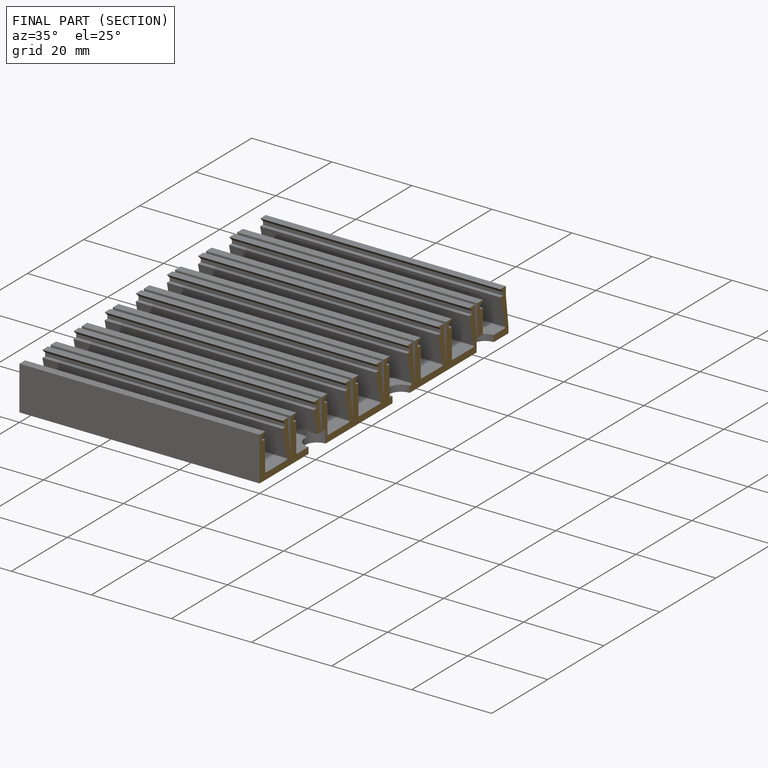
[diagram: finished part — half-section view (interior)]
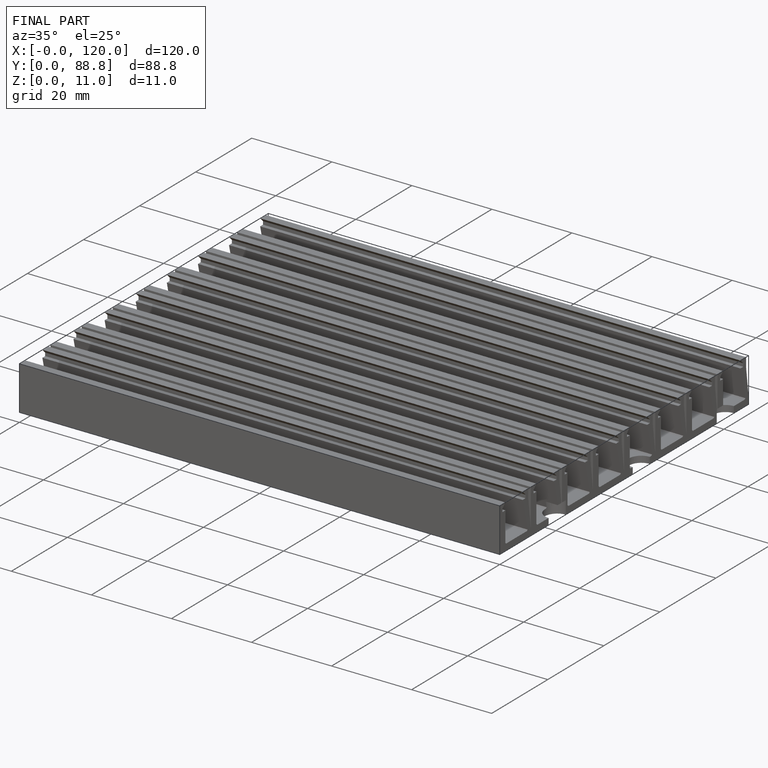
[diagram: finished part — iso view with bounding-box wireframe]
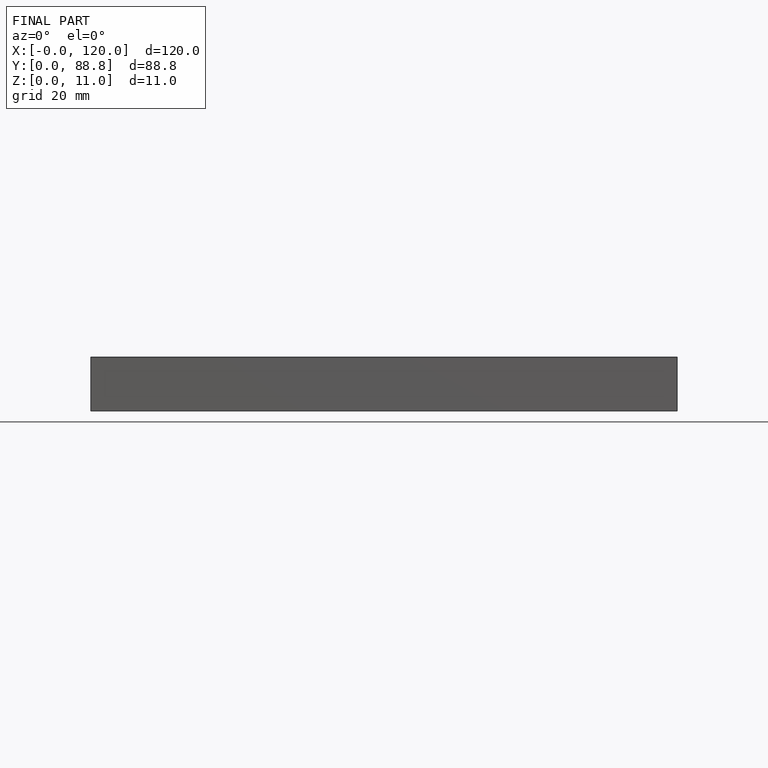
[diagram: finished part — front view with bounding-box wireframe]
